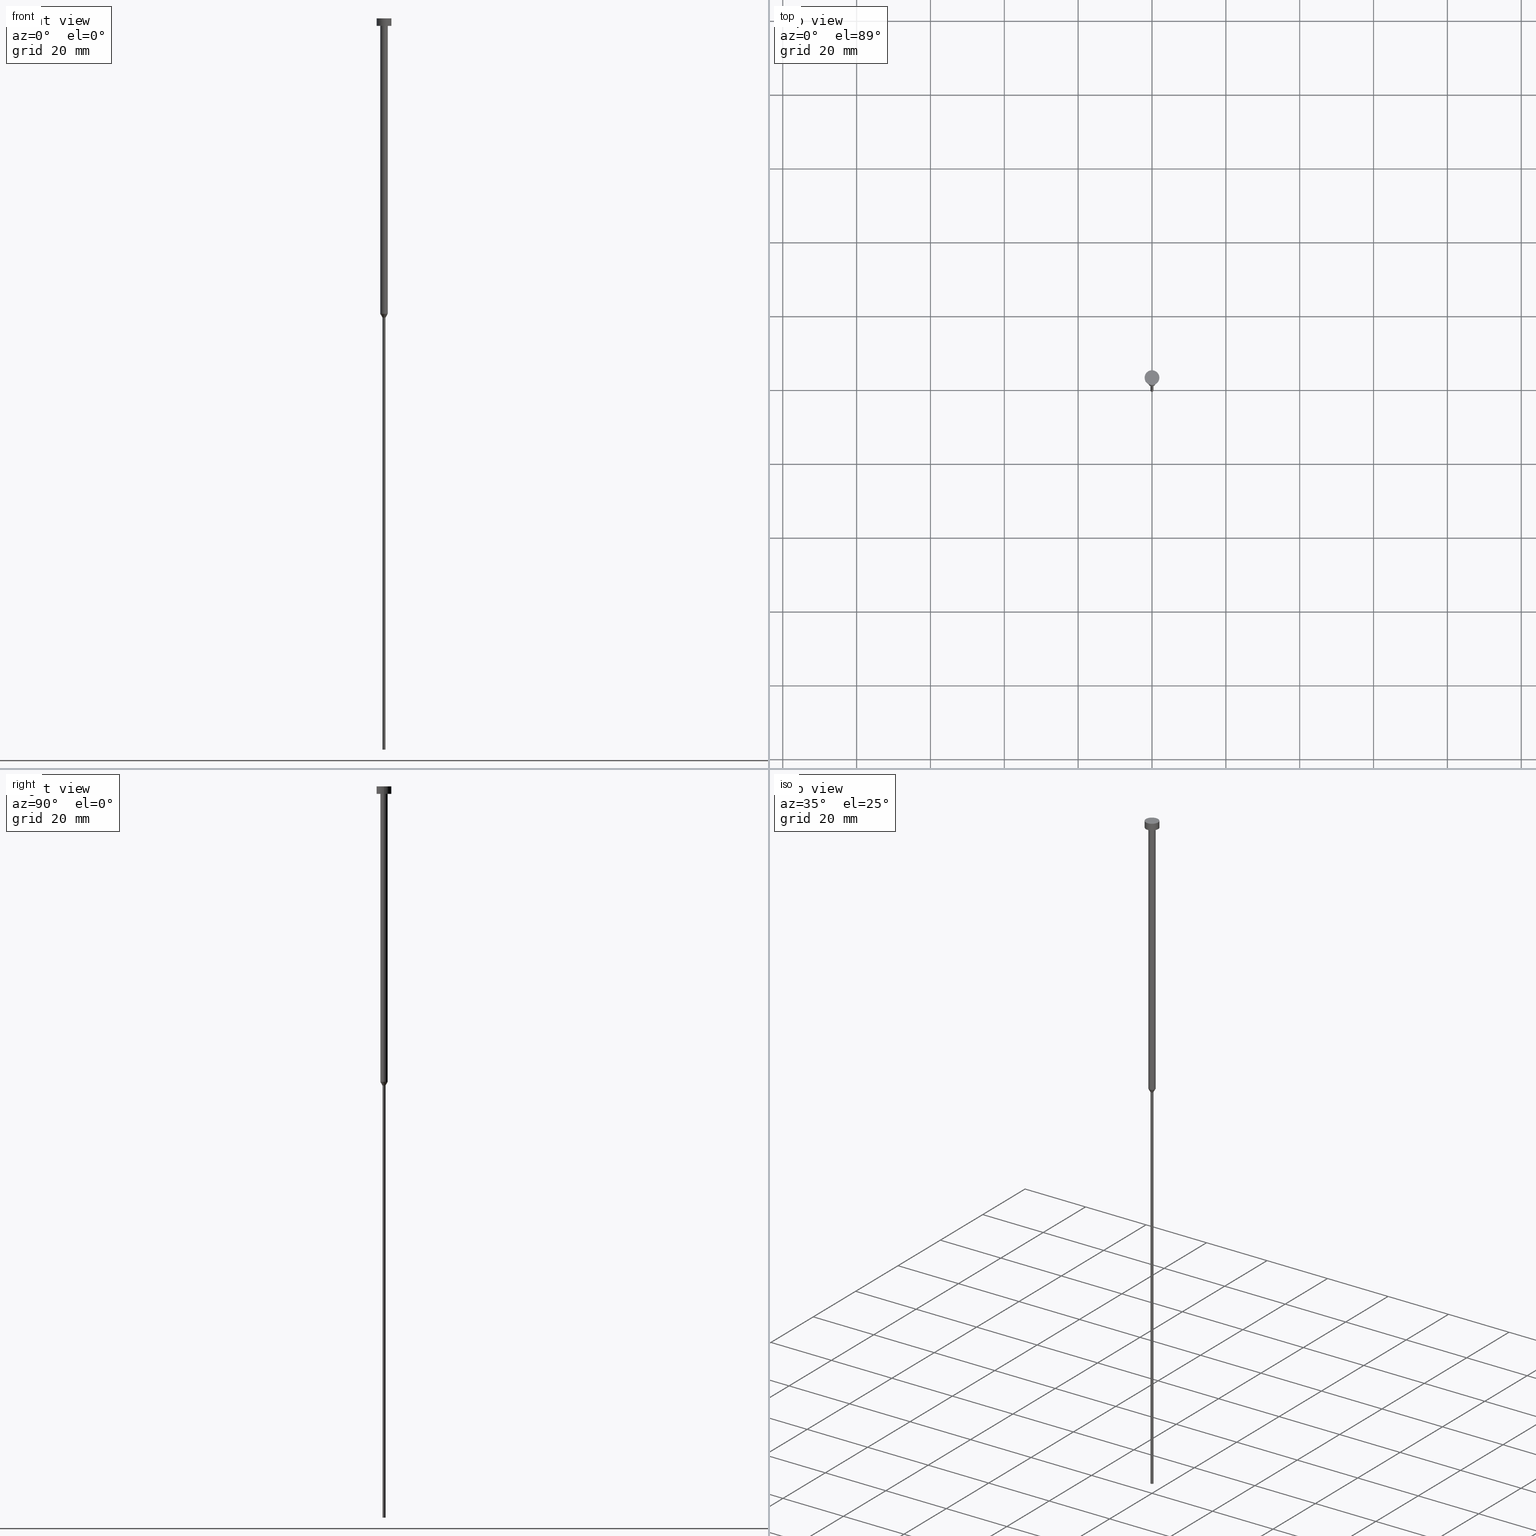
[diagram: canonical four-view strip — front | top / right | iso, engineering-drawing reading convention]
A machine part, canonical four-view strip (front | top / right | iso — engineering-drawing reading convention). The complete STEP part file that produces these views, byte-faithful:
ISO-10303-21;
HEADER;
FILE_DESCRIPTION (( 'STEP AP203' ),
    '1' );
FILE_NAME ('df1c.STEP',
    '2023-04-06T10:08:17',
    ( '' ),
    ( '' ),
    'SwSTEP 2.0',
    'SolidWorks 2019',
    '' );
FILE_SCHEMA (( 'CONFIG_CONTROL_DESIGN' ));
ENDSEC;

DATA;
#1 = EDGE_LOOP ( 'NONE', ( #109, #166, #287, #326 ) ) ;
#2 = VECTOR ( 'NONE', #301, 1000.000000000000000 ) ;
#3 = CC_DESIGN_PERSON_AND_ORGANIZATION_ASSIGNMENT ( #261, #311, ( #119 ) ) ;
#4 = EDGE_LOOP ( 'NONE', ( #296, #237, #211, #168 ) ) ;
#5 = CARTESIAN_POINT ( 'NONE',  ( 0.000000000000000000, 0.000000000000000000, -2.000000000000000444 ) ) ;
#6 = DIRECTION ( 'NONE',  ( -0.000000000000000000, -0.000000000000000000, 1.000000000000000000 ) ) ;
#7 = VECTOR ( 'NONE', #247, 1000.000000000000227 ) ;
#8 = DIRECTION ( 'NONE',  ( 1.000000000000000000, 0.000000000000000000, 0.000000000000000000 ) ) ;
#9 = DIRECTION ( 'NONE',  ( 1.000000000000000000, 0.000000000000000000, 0.000000000000000000 ) ) ;
#10 = COORDINATED_UNIVERSAL_TIME_OFFSET ( 1, 0, .AHEAD. ) ;
#11 = CARTESIAN_POINT ( 'NONE',  ( 2.000000000000000000, 0.000000000000000000, -2.449293598294705921E-16 ) ) ;
#12 = CONICAL_SURFACE ( 'NONE', #178, 1.000000000000003109, 0.5235987755983013692 ) ;
#13 = FACE_OUTER_BOUND ( 'NONE', #243, .T. ) ;
#14 = DATE_AND_TIME ( #207, #130 ) ;
#15 = ORIENTED_EDGE ( 'NONE', *, *, #78, .F. ) ;
#16 = ADVANCED_FACE ( 'NONE', ( #187 ), #351, .T. ) ;
#17 = APPLICATION_PROTOCOL_DEFINITION ( 'international standard', 'config_control_design', 1994, #70 ) ;
#18 = CIRCLE ( 'NONE', #28, 2.000000000000000000 ) ;
#19 = ORIENTED_EDGE ( 'NONE', *, *, #36, .F. ) ;
#20 = EDGE_LOOP ( 'NONE', ( #355, #263 ) ) ;
#21 = ADVANCED_FACE ( 'NONE', ( #189 ), #105, .T. ) ;
#22 = VERTEX_POINT ( 'NONE', #191 ) ;
#23 = CIRCLE ( 'NONE', #219, 2.000000000000000000 ) ;
#24 = EDGE_LOOP ( 'NONE', ( #55, #221, #328, #41 ) ) ;
#25 = VERTEX_POINT ( 'NONE', #332 ) ;
#26 = CC_DESIGN_APPROVAL ( #331, ( #244 ) ) ;
#27 = CARTESIAN_POINT ( 'NONE',  ( 0.000000000000000000, 0.000000000000000000, 0.000000000000000000 ) ) ;
#28 = AXIS2_PLACEMENT_3D ( 'NONE', #143, #251, #8 ) ;
#29 = VECTOR ( 'NONE', #276, 1000.000000000000000 ) ;
#30 = CARTESIAN_POINT ( 'NONE',  ( 0.000000000000000000, 0.000000000000000000, -1.224646799147352961E-16 ) ) ;
#31 = CARTESIAN_POINT ( 'NONE',  ( 0.000000000000000000, 0.000000000000000000, 0.000000000000000000 ) ) ;
#32 = CARTESIAN_POINT ( 'NONE',  ( -1.000000000000003553, 1.224646799147357398E-16, -2.000000000000000444 ) ) ;
#33 = CIRCLE ( 'NONE', #293, 0.4000000000000000222 ) ;
#34 = CALENDAR_DATE ( 2023, 6, 4 ) ;
#35 = CARTESIAN_POINT ( 'NONE',  ( -2.000000000000000000, 2.449293598294706414E-16, 0.000000000000000000 ) ) ;
#36 = EDGE_CURVE ( 'NONE', #233, #245, #33, .T. ) ;
#37 = DATE_TIME_ROLE ( 'classification_date' ) ;
#38 = LINE ( 'NONE', #212, #334 ) ;
#39 = CARTESIAN_POINT ( 'NONE',  ( 0.000000000000000000, 0.000000000000000000, 0.000000000000000000 ) ) ;
#40 = ORIENTED_EDGE ( 'NONE', *, *, #188, .T. ) ;
#41 = ORIENTED_EDGE ( 'NONE', *, *, #52, .F. ) ;
#42 = PERSON_AND_ORGANIZATION ( #352, #300 ) ;
#43 = DIRECTION ( 'NONE',  ( -0.000000000000000000, -0.000000000000000000, 1.000000000000000000 ) ) ;
#44 = DIRECTION ( 'NONE',  ( -0.000000000000000000, -0.000000000000000000, 1.000000000000000000 ) ) ;
#45 = AXIS2_PLACEMENT_3D ( 'NONE', #27, #220, #77 ) ;
#46 = EDGE_LOOP ( 'NONE', ( #343, #193 ) ) ;
#47 = PERSON_AND_ORGANIZATION_ROLE ( 'design_owner' ) ;
#48 = ORIENTED_EDGE ( 'NONE', *, *, #215, .T. ) ;
#49 = ORIENTED_EDGE ( 'NONE', *, *, #260, .T. ) ;
#50 = CARTESIAN_POINT ( 'NONE',  ( 1.000000000000003109, 0.000000000000000000, -80.00000000000000000 ) ) ;
#51 =( GEOMETRIC_REPRESENTATION_CONTEXT ( 3 ) GLOBAL_UNCERTAINTY_ASSIGNED_CONTEXT ( ( #141 ) ) GLOBAL_UNIT_ASSIGNED_CONTEXT ( ( #121, #318, #95 ) ) REPRESENTATION_CONTEXT ( 'NONE', 'WORKASPACE' ) );
#52 = EDGE_CURVE ( 'NONE', #22, #129, #270, .T. ) ;
#53 = VERTEX_POINT ( 'NONE', #269 ) ;
#54 = EDGE_LOOP ( 'NONE', ( #217, #19 ) ) ;
#55 = ORIENTED_EDGE ( 'NONE', *, *, #106, .T. ) ;
#56 = AXIS2_PLACEMENT_3D ( 'NONE', #132, #242, #79 ) ;
#57 = LINE ( 'NONE', #146, #206 ) ;
#58 = DIRECTION ( 'NONE',  ( 1.000000000000000000, 0.000000000000000000, 0.000000000000000000 ) ) ;
#59 = DIRECTION ( 'NONE',  ( -0.000000000000000000, -0.000000000000000000, 1.000000000000000000 ) ) ;
#60 = CIRCLE ( 'NONE', #268, 0.4000000000000000222 ) ;
#61 = APPROVAL_ROLE ( '' ) ;
#62 = LINE ( 'NONE', #35, #29 ) ;
#63 = CC_DESIGN_PERSON_AND_ORGANIZATION_ASSIGNMENT ( #239, #209, ( #244 ) ) ;
#64 = ADVANCED_BREP_SHAPE_REPRESENTATION ( 'df1c', ( #271, #98 ), #51 ) ;
#65 = COORDINATED_UNIVERSAL_TIME_OFFSET ( 1, 0, .AHEAD. ) ;
#66 = DIRECTION ( 'NONE',  ( -0.000000000000000000, -0.000000000000000000, 1.000000000000000000 ) ) ;
#67 = APPROVAL_PERSON_ORGANIZATION ( #42, #122, #349 ) ;
#68 = DATE_TIME_ROLE ( 'creation_date' ) ;
#69 = AXIS2_PLACEMENT_3D ( 'NONE', #313, #66, #258 ) ;
#70 = APPLICATION_CONTEXT ( 'configuration controlled 3d designs of mechanical parts and assemblies' ) ;
#71 = DIRECTION ( 'NONE',  ( -0.000000000000000000, -0.000000000000000000, 1.000000000000000000 ) ) ;
#72 = EDGE_LOOP ( 'NONE', ( #107, #302, #108, #15 ) ) ;
#73 = DIRECTION ( 'NONE',  ( 1.000000000000000000, 0.000000000000000000, 0.000000000000000000 ) ) ;
#74 = APPLICATION_PROTOCOL_DEFINITION ( 'international standard', 'config_control_design', 1994, #307 ) ;
#75 = EDGE_CURVE ( 'NONE', #245, #22, #133, .T. ) ;
#76 = PRODUCT_DEFINITION_SHAPE ( 'NONE', 'NONE',  #244 ) ;
#77 = DIRECTION ( 'NONE',  ( 1.000000000000000000, 0.000000000000000000, 0.000000000000000000 ) ) ;
#78 = EDGE_CURVE ( 'NONE', #192, #82, #286, .T. ) ;
#79 = DIRECTION ( 'NONE',  ( 1.000000000000000000, 0.000000000000000000, 0.000000000000000000 ) ) ;
#80 = CIRCLE ( 'NONE', #316, 2.000000000000000000 ) ;
#81 = EDGE_LOOP ( 'NONE', ( #49, #40, #205, #214 ) ) ;
#82 = VERTEX_POINT ( 'NONE', #252 ) ;
#83 = PLANE ( 'NONE',  #145 ) ;
#84 = ADVANCED_FACE ( 'NONE', ( #304, #279 ), #83, .T. ) ;
#85 = AXIS2_PLACEMENT_3D ( 'NONE', #87, #198, #89 ) ;
#86 = CARTESIAN_POINT ( 'NONE',  ( -0.3999999999999999667, 4.898587196589412459E-17, 0.000000000000000000 ) ) ;
#87 = CARTESIAN_POINT ( 'NONE',  ( 0.000000000000000000, 0.000000000000000000, -2.449293598294705921E-16 ) ) ;
#88 = EDGE_CURVE ( 'NONE', #82, #192, #195, .T. ) ;
#89 = DIRECTION ( 'NONE',  ( 1.000000000000000000, 0.000000000000000000, 0.000000000000000000 ) ) ;
#90 = CC_DESIGN_SECURITY_CLASSIFICATION ( #184, ( #119 ) ) ;
#91 = PERSON_AND_ORGANIZATION ( #352, #300 ) ;
#92 = CARTESIAN_POINT ( 'NONE',  ( 0.000000000000000000, -2.000000000000000000, -2.000000000000000444 ) ) ;
#93 = DATE_AND_TIME ( #173, #135 ) ;
#94 = DIRECTION ( 'NONE',  ( -0.000000000000000000, -0.000000000000000000, 1.000000000000000000 ) ) ;
#95 =( NAMED_UNIT ( * ) SI_UNIT ( $, .STERADIAN. ) SOLID_ANGLE_UNIT ( ) );
#96 = ORIENTED_EDGE ( 'NONE', *, *, #327, .T. ) ;
#97 = APPROVAL_STATUS ( 'not_yet_approved' ) ;
#98 = AXIS2_PLACEMENT_3D ( 'NONE', #124, #236, #345 ) ;
#99 = COORDINATED_UNIVERSAL_TIME_OFFSET ( 1, 0, .AHEAD. ) ;
#100 = CARTESIAN_POINT ( 'NONE',  ( 1.000000000000003331, 0.000000000000000000, 0.000000000000000000 ) ) ;
#101 = ADVANCED_FACE ( 'NONE', ( #335 ), #312, .T. ) ;
#102 = DIRECTION ( 'NONE',  ( -0.000000000000000000, -0.000000000000000000, 1.000000000000000000 ) ) ;
#103 = ORIENTED_EDGE ( 'NONE', *, *, #188, .F. ) ;
#104 = AXIS2_PLACEMENT_3D ( 'NONE', #5, #250, #254 ) ;
#105 = CYLINDRICAL_SURFACE ( 'NONE', #56, 1.000000000000003331 ) ;
#106 = EDGE_CURVE ( 'NONE', #22, #347, #213, .T. ) ;
#107 = ORIENTED_EDGE ( 'NONE', *, *, #157, .F. ) ;
#108 = ORIENTED_EDGE ( 'NONE', *, *, #297, .T. ) ;
#109 = ORIENTED_EDGE ( 'NONE', *, *, #306, .T. ) ;
#110 = EDGE_CURVE ( 'NONE', #347, #53, #273, .T. ) ;
#111 = CARTESIAN_POINT ( 'NONE',  ( 1.000000000000003109, 0.000000000000000000, -80.00000000000000000 ) ) ;
#112 = CARTESIAN_POINT ( 'NONE',  ( 0.000000000000000000, 0.000000000000000000, -80.00000000000000000 ) ) ;
#113 = CYLINDRICAL_SURFACE ( 'NONE', #131, 0.3999999999999999667 ) ;
#114 = ADVANCED_FACE ( 'NONE', ( #282 ), #174, .T. ) ;
#115 = CARTESIAN_POINT ( 'NONE',  ( 0.000000000000000000, 0.000000000000000000, 0.000000000000000000 ) ) ;
#116 = APPROVAL_DATE_TIME ( #253, #122 ) ;
#117 = DIRECTION ( 'NONE',  ( -0.000000000000000000, -0.000000000000000000, 1.000000000000000000 ) ) ;
#118 = CIRCLE ( 'NONE', #85, 2.000000000000000000 ) ;
#119 = PRODUCT_DEFINITION_FORMATION_WITH_SPECIFIED_SOURCE ( 'LIBOVOLN�', '', #259, .NOT_KNOWN. ) ;
#120 = DIRECTION ( 'NONE',  ( 1.000000000000000000, 0.000000000000000000, 0.000000000000000000 ) ) ;
#121 =( LENGTH_UNIT ( ) NAMED_UNIT ( * ) SI_UNIT ( .MILLI., .METRE. ) );
#122 = APPROVAL ( #97, 'NEUR�EN�' ) ;
#123 = DATE_AND_TIME ( #281, #142 ) ;
#124 = CARTESIAN_POINT ( 'NONE',  ( 0.000000000000000000, 0.000000000000000000, 0.000000000000000000 ) ) ;
#125 = APPROVAL_DATE_TIME ( #14, #331 ) ;
#126 = CIRCLE ( 'NONE', #223, 1.000000000000003109 ) ;
#127 = MECHANICAL_CONTEXT ( 'NONE', #70, 'mechanical' ) ;
#128 = EDGE_LOOP ( 'NONE', ( #48, #267 ) ) ;
#129 = VERTEX_POINT ( 'NONE', #111 ) ;
#130 = LOCAL_TIME ( 12, 8, 17.00000000000000000, #10 ) ;
#131 = AXIS2_PLACEMENT_3D ( 'NONE', #115, #226, #336 ) ;
#132 = CARTESIAN_POINT ( 'NONE',  ( 0.000000000000000000, 0.000000000000000000, 0.000000000000000000 ) ) ;
#133 = LINE ( 'NONE', #272, #2 ) ;
#134 = CARTESIAN_POINT ( 'NONE',  ( 0.000000000000000000, 0.000000000000000000, -2.000000000000000444 ) ) ;
#135 = LOCAL_TIME ( 12, 8, 17.00000000000000000, #99 ) ;
#136 = DIRECTION ( 'NONE',  ( -0.000000000000000000, -0.000000000000000000, 1.000000000000000000 ) ) ;
#137 = AXIS2_PLACEMENT_3D ( 'NONE', #31, #340, #9 ) ;
#138 = EDGE_CURVE ( 'NONE', #347, #22, #324, .T. ) ;
#139 = CARTESIAN_POINT ( 'NONE',  ( -1.000000000000003109, 1.224646799147356905E-16, -80.00000000000000000 ) ) ;
#140 = DIRECTION ( 'NONE',  ( -0.5000000000000021094, 6.123233995736791920E-17, 0.8660254037844373753 ) ) ;
#141 = UNCERTAINTY_MEASURE_WITH_UNIT (LENGTH_MEASURE( 1.000000000000000082E-05 ), #121, 'distance_accuracy_value', 'NONE');
#142 = LOCAL_TIME ( 12, 8, 17.00000000000000000, #257 ) ;
#143 = CARTESIAN_POINT ( 'NONE',  ( 0.000000000000000000, 0.000000000000000000, -2.449293598294705921E-16 ) ) ;
#144 = CC_DESIGN_PERSON_AND_ORGANIZATION_ASSIGNMENT ( #235, #154, ( #119 ) ) ;
#145 = AXIS2_PLACEMENT_3D ( 'NONE', #92, #200, #305 ) ;
#146 = CARTESIAN_POINT ( 'NONE',  ( -1.000000000000003331, 1.224646799147357151E-16, 0.000000000000000000 ) ) ;
#147 = DATE_AND_TIME ( #34, #230 ) ;
#148 = DIRECTION ( 'NONE',  ( -0.000000000000000000, -0.000000000000000000, 1.000000000000000000 ) ) ;
#149 = LINE ( 'NONE', #100, #238 ) ;
#150 = AXIS2_PLACEMENT_3D ( 'NONE', #134, #136, #303 ) ;
#151 = CC_DESIGN_PERSON_AND_ORGANIZATION_ASSIGNMENT ( #203, #290, ( #184 ) ) ;
#152 = CARTESIAN_POINT ( 'NONE',  ( 0.000000000000000000, 0.000000000000000000, -198.0000000000000000 ) ) ;
#153 = DIRECTION ( 'NONE',  ( 1.000000000000000000, 0.000000000000000000, 0.000000000000000000 ) ) ;
#154 = PERSON_AND_ORGANIZATION_ROLE ( 'design_supplier' ) ;
#155 = DIRECTION ( 'NONE',  ( -1.000000000000000000, 0.000000000000000000, -0.000000000000000000 ) ) ;
#156 = VERTEX_POINT ( 'NONE', #11 ) ;
#157 = EDGE_CURVE ( 'NONE', #53, #192, #57, .T. ) ;
#158 = FACE_OUTER_BOUND ( 'NONE', #54, .T. ) ;
#159 = ORIENTED_EDGE ( 'NONE', *, *, #163, .T. ) ;
#160 = APPROVAL_STATUS ( 'not_yet_approved' ) ;
#161 = EDGE_LOOP ( 'NONE', ( #216, #323, #295, #165 ) ) ;
#162 = ORIENTED_EDGE ( 'NONE', *, *, #75, .F. ) ;
#163 = EDGE_CURVE ( 'NONE', #233, #347, #333, .T. ) ;
#164 = ORIENTED_EDGE ( 'NONE', *, *, #249, .T. ) ;
#165 = ORIENTED_EDGE ( 'NONE', *, *, #138, .F. ) ;
#166 = ORIENTED_EDGE ( 'NONE', *, *, #157, .T. ) ;
#167 = ADVANCED_FACE ( 'NONE', ( #337 ), #196, .T. ) ;
#168 = ORIENTED_EDGE ( 'NONE', *, *, #289, .F. ) ;
#169 = CARTESIAN_POINT ( 'NONE',  ( 0.000000000000000000, 0.000000000000000000, 0.000000000000000000 ) ) ;
#170 = DIRECTION ( 'NONE',  ( 1.000000000000000000, 0.000000000000000000, 0.000000000000000000 ) ) ;
#171 = FACE_OUTER_BOUND ( 'NONE', #24, .T. ) ;
#172 = AXIS2_PLACEMENT_3D ( 'NONE', #152, #265, #155 ) ;
#173 = CALENDAR_DATE ( 2023, 6, 4 ) ;
#174 = PLANE ( 'NONE',  #231 ) ;
#175 = CARTESIAN_POINT ( 'NONE',  ( 0.000000000000000000, 0.000000000000000000, -80.00000000000000000 ) ) ;
#176 = APPROVAL_DATE_TIME ( #93, #229 ) ;
#177 = DIRECTION ( 'NONE',  ( 1.000000000000000000, 0.000000000000000000, 0.000000000000000000 ) ) ;
#178 = AXIS2_PLACEMENT_3D ( 'NONE', #175, #283, #120 ) ;
#179 = APPROVAL_STATUS ( 'not_yet_approved' ) ;
#180 = CARTESIAN_POINT ( 'NONE',  ( -0.3999999999999999667, 4.898587196589412459E-17, -81.03923048454132072 ) ) ;
#181 = ADVANCED_FACE ( 'NONE', ( #171 ), #278, .T. ) ;
#182 = ORIENTED_EDGE ( 'NONE', *, *, #348, .T. ) ;
#183 = CARTESIAN_POINT ( 'NONE',  ( -0.4000000000000000777, 4.898587196589413692E-17, -198.0000000000000000 ) ) ;
#184 = SECURITY_CLASSIFICATION ( '', '', #344 ) ;
#185 = AXIS2_PLACEMENT_3D ( 'NONE', #169, #148, #275 ) ;
#186 = PERSON_AND_ORGANIZATION ( #352, #300 ) ;
#187 = FACE_OUTER_BOUND ( 'NONE', #81, .T. ) ;
#188 = EDGE_CURVE ( 'NONE', #25, #319, #62, .T. ) ;
#189 = FACE_OUTER_BOUND ( 'NONE', #1, .T. ) ;
#190 = VECTOR ( 'NONE', #59, 1000.000000000000000 ) ;
#191 = CARTESIAN_POINT ( 'NONE',  ( 0.3999999999999999667, 0.000000000000000000, -81.03923048454132072 ) ) ;
#192 = VERTEX_POINT ( 'NONE', #32 ) ;
#193 = ORIENTED_EDGE ( 'NONE', *, *, #78, .T. ) ;
#194 = LOCAL_TIME ( 12, 8, 17.00000000000000000, #228 ) ;
#195 = CIRCLE ( 'NONE', #104, 1.000000000000003553 ) ;
#196 = CYLINDRICAL_SURFACE ( 'NONE', #185, 1.000000000000003331 ) ;
#197 = DIRECTION ( 'NONE',  ( -0.000000000000000000, -0.000000000000000000, 1.000000000000000000 ) ) ;
#198 = DIRECTION ( 'NONE',  ( -0.000000000000000000, -0.000000000000000000, 1.000000000000000000 ) ) ;
#199 = CC_DESIGN_APPROVAL ( #122, ( #184 ) ) ;
#200 = DIRECTION ( 'NONE',  ( 0.000000000000000000, 0.000000000000000000, -1.000000000000000000 ) ) ;
#201 = CARTESIAN_POINT ( 'NONE',  ( 0.000000000000000000, 0.000000000000000000, -81.03923048454132072 ) ) ;
#202 = DESIGN_CONTEXT ( 'detailed design', #307, 'design' ) ;
#203 = PERSON_AND_ORGANIZATION ( #352, #300 ) ;
#204 = CARTESIAN_POINT ( 'NONE',  ( 0.000000000000000000, 0.000000000000000000, -80.00000000000000000 ) ) ;
#205 = ORIENTED_EDGE ( 'NONE', *, *, #215, .F. ) ;
#206 = VECTOR ( 'NONE', #117, 1000.000000000000000 ) ;
#207 = CALENDAR_DATE ( 2023, 6, 4 ) ;
#208 = CARTESIAN_POINT ( 'NONE',  ( 0.000000000000000000, 0.000000000000000000, -198.0000000000000000 ) ) ;
#209 = PERSON_AND_ORGANIZATION_ROLE ( 'creator' ) ;
#210 = CARTESIAN_POINT ( 'NONE',  ( -2.000000000000000000, 2.449293598294706414E-16, -2.449293598294705921E-16 ) ) ;
#211 = ORIENTED_EDGE ( 'NONE', *, *, #52, .T. ) ;
#212 = CARTESIAN_POINT ( 'NONE',  ( 2.000000000000000000, 0.000000000000000000, 0.000000000000000000 ) ) ;
#213 = CIRCLE ( 'NONE', #346, 0.3999999999999999667 ) ;
#214 = ORIENTED_EDGE ( 'NONE', *, *, #249, .F. ) ;
#215 = EDGE_CURVE ( 'NONE', #156, #319, #18, .T. ) ;
#216 = ORIENTED_EDGE ( 'NONE', *, *, #163, .F. ) ;
#217 = ORIENTED_EDGE ( 'NONE', *, *, #327, .F. ) ;
#218 = ADVANCED_FACE ( 'NONE', ( #227 ), #113, .T. ) ;
#219 = AXIS2_PLACEMENT_3D ( 'NONE', #322, #102, #315 ) ;
#220 = DIRECTION ( 'NONE',  ( -0.000000000000000000, -0.000000000000000000, 1.000000000000000000 ) ) ;
#221 = ORIENTED_EDGE ( 'NONE', *, *, #110, .T. ) ;
#222 = DIRECTION ( 'NONE',  ( 1.000000000000000000, 0.000000000000000000, 0.000000000000000000 ) ) ;
#223 = AXIS2_PLACEMENT_3D ( 'NONE', #204, #94, #153 ) ;
#224 = DIRECTION ( 'NONE',  ( 0.000000000000000000, -0.000000000000000000, 1.000000000000000000 ) ) ;
#225 = EDGE_CURVE ( 'NONE', #319, #156, #118, .T. ) ;
#226 = DIRECTION ( 'NONE',  ( -0.000000000000000000, -0.000000000000000000, 1.000000000000000000 ) ) ;
#227 = FACE_OUTER_BOUND ( 'NONE', #161, .T. ) ;
#228 = COORDINATED_UNIVERSAL_TIME_OFFSET ( 1, 0, .AHEAD. ) ;
#229 = APPROVAL ( #179, 'NEUR�EN�' ) ;
#230 = LOCAL_TIME ( 12, 8, 17.00000000000000000, #65 ) ;
#231 = AXIS2_PLACEMENT_3D ( 'NONE', #30, #224, #248 ) ;
#232 = DIRECTION ( 'NONE',  ( 1.000000000000000000, 0.000000000000000000, 0.000000000000000000 ) ) ;
#233 = VERTEX_POINT ( 'NONE', #183 ) ;
#234 = ADVANCED_FACE ( 'NONE', ( #240 ), #12, .T. ) ;
#235 = PERSON_AND_ORGANIZATION ( #352, #300 ) ;
#236 = DIRECTION ( 'NONE',  ( 0.000000000000000000, 0.000000000000000000, 1.000000000000000000 ) ) ;
#237 = ORIENTED_EDGE ( 'NONE', *, *, #138, .T. ) ;
#238 = VECTOR ( 'NONE', #43, 1000.000000000000000 ) ;
#239 = PERSON_AND_ORGANIZATION ( #352, #300 ) ;
#240 = FACE_OUTER_BOUND ( 'NONE', #4, .T. ) ;
#241 = ORIENTED_EDGE ( 'NONE', *, *, #106, .F. ) ;
#242 = DIRECTION ( 'NONE',  ( -0.000000000000000000, -0.000000000000000000, 1.000000000000000000 ) ) ;
#243 = EDGE_LOOP ( 'NONE', ( #96, #159, #241, #162 ) ) ;
#244 = PRODUCT_DEFINITION ( 'NEZN�M�', '', #119, #202 ) ;
#245 = VERTEX_POINT ( 'NONE', #321 ) ;
#246 = VECTOR ( 'NONE', #140, 1000.000000000000227 ) ;
#247 = DIRECTION ( 'NONE',  ( 0.5000000000000021094, 0.000000000000000000, 0.8660254037844373753 ) ) ;
#248 = DIRECTION ( 'NONE',  ( 1.000000000000000000, 0.000000000000000000, 0.000000000000000000 ) ) ;
#249 = EDGE_CURVE ( 'NONE', #291, #156, #38, .T. ) ;
#250 = DIRECTION ( 'NONE',  ( -0.000000000000000000, -0.000000000000000000, 1.000000000000000000 ) ) ;
#251 = DIRECTION ( 'NONE',  ( -0.000000000000000000, -0.000000000000000000, 1.000000000000000000 ) ) ;
#252 = CARTESIAN_POINT ( 'NONE',  ( 1.000000000000003553, 0.000000000000000000, -2.000000000000000444 ) ) ;
#253 = DATE_AND_TIME ( #288, #194 ) ;
#254 = DIRECTION ( 'NONE',  ( 1.000000000000000000, 0.000000000000000000, 0.000000000000000000 ) ) ;
#255 = DIRECTION ( 'NONE',  ( -0.000000000000000000, -0.000000000000000000, 1.000000000000000000 ) ) ;
#256 = CLOSED_SHELL ( 'NONE', ( #16, #21, #181, #342, #354, #218, #234, #167, #84, #101, #114 ) ) ;
#257 = COORDINATED_UNIVERSAL_TIME_OFFSET ( 1, 0, .AHEAD. ) ;
#258 = DIRECTION ( 'NONE',  ( 1.000000000000000000, 0.000000000000000000, 0.000000000000000000 ) ) ;
#259 = PRODUCT ( 'df1c', 'df1c', '', ( #127 ) ) ;
#260 = EDGE_CURVE ( 'NONE', #291, #25, #23, .T. ) ;
#261 = PERSON_AND_ORGANIZATION ( #352, #300 ) ;
#262 = CYLINDRICAL_SURFACE ( 'NONE', #264, 0.3999999999999999667 ) ;
#263 = ORIENTED_EDGE ( 'NONE', *, *, #348, .F. ) ;
#264 = AXIS2_PLACEMENT_3D ( 'NONE', #39, #292, #232 ) ;
#265 = DIRECTION ( 'NONE',  ( 0.000000000000000000, 0.000000000000000000, -1.000000000000000000 ) ) ;
#266 = PERSON_AND_ORGANIZATION ( #352, #300 ) ;
#267 = ORIENTED_EDGE ( 'NONE', *, *, #225, .T. ) ;
#268 = AXIS2_PLACEMENT_3D ( 'NONE', #208, #255, #177 ) ;
#269 = CARTESIAN_POINT ( 'NONE',  ( -1.000000000000003109, 1.224646799147356905E-16, -80.00000000000000000 ) ) ;
#270 = LINE ( 'NONE', #50, #7 ) ;
#271 = MANIFOLD_SOLID_BREP ( 'Rotovat1', #256 ) ;
#272 = CARTESIAN_POINT ( 'NONE',  ( 0.3999999999999999667, 0.000000000000000000, 0.000000000000000000 ) ) ;
#273 = LINE ( 'NONE', #139, #246 ) ;
#274 = PRODUCT_RELATED_PRODUCT_CATEGORY ( 'detail', '', ( #259 ) ) ;
#275 = DIRECTION ( 'NONE',  ( 1.000000000000000000, 0.000000000000000000, 0.000000000000000000 ) ) ;
#276 = DIRECTION ( 'NONE',  ( -0.000000000000000000, -0.000000000000000000, 1.000000000000000000 ) ) ;
#277 = APPROVAL_PERSON_ORGANIZATION ( #186, #331, #294 ) ;
#278 = CONICAL_SURFACE ( 'NONE', #309, 1.000000000000003109, 0.5235987755983013692 ) ;
#279 = FACE_OUTER_BOUND ( 'NONE', #20, .T. ) ;
#280 = CC_DESIGN_PERSON_AND_ORGANIZATION_ASSIGNMENT ( #266, #47, ( #259 ) ) ;
#281 = CALENDAR_DATE ( 2023, 6, 4 ) ;
#282 = FACE_OUTER_BOUND ( 'NONE', #128, .T. ) ;
#283 = DIRECTION ( 'NONE',  ( -0.000000000000000000, -0.000000000000000000, 1.000000000000000000 ) ) ;
#284 = SHAPE_DEFINITION_REPRESENTATION ( #76, #64 ) ;
#285 = PLANE ( 'NONE',  #172 ) ;
#286 = CIRCLE ( 'NONE', #150, 1.000000000000003553 ) ;
#287 = ORIENTED_EDGE ( 'NONE', *, *, #88, .F. ) ;
#288 = CALENDAR_DATE ( 2023, 6, 4 ) ;
#289 = EDGE_CURVE ( 'NONE', #53, #129, #126, .T. ) ;
#290 = PERSON_AND_ORGANIZATION_ROLE ( 'classification_officer' ) ;
#291 = VERTEX_POINT ( 'NONE', #350 ) ;
#292 = DIRECTION ( 'NONE',  ( -0.000000000000000000, -0.000000000000000000, 1.000000000000000000 ) ) ;
#293 = AXIS2_PLACEMENT_3D ( 'NONE', #353, #330, #298 ) ;
#294 = APPROVAL_ROLE ( '' ) ;
#295 = ORIENTED_EDGE ( 'NONE', *, *, #75, .T. ) ;
#296 = ORIENTED_EDGE ( 'NONE', *, *, #110, .F. ) ;
#297 = EDGE_CURVE ( 'NONE', #129, #82, #149, .T. ) ;
#298 = DIRECTION ( 'NONE',  ( 1.000000000000000000, 0.000000000000000000, 0.000000000000000000 ) ) ;
#299 = CC_DESIGN_APPROVAL ( #229, ( #119 ) ) ;
#300 = ORGANIZATION ( 'NEUR�EN�', 'NEUR�EN�', '' ) ;
#301 = DIRECTION ( 'NONE',  ( -0.000000000000000000, -0.000000000000000000, 1.000000000000000000 ) ) ;
#302 = ORIENTED_EDGE ( 'NONE', *, *, #289, .T. ) ;
#303 = DIRECTION ( 'NONE',  ( 1.000000000000000000, 0.000000000000000000, 0.000000000000000000 ) ) ;
#304 = FACE_BOUND ( 'NONE', #46, .T. ) ;
#305 = DIRECTION ( 'NONE',  ( -1.000000000000000000, 0.000000000000000000, -0.000000000000000000 ) ) ;
#306 = EDGE_CURVE ( 'NONE', #129, #53, #329, .T. ) ;
#307 = APPLICATION_CONTEXT ( 'configuration controlled 3d designs of mechanical parts and assemblies' ) ;
#308 = CARTESIAN_POINT ( 'NONE',  ( 0.000000000000000000, 0.000000000000000000, -81.03923048454132072 ) ) ;
#309 = AXIS2_PLACEMENT_3D ( 'NONE', #112, #197, #170 ) ;
#310 = DIRECTION ( 'NONE',  ( -0.000000000000000000, -0.000000000000000000, 1.000000000000000000 ) ) ;
#311 = PERSON_AND_ORGANIZATION_ROLE ( 'creator' ) ;
#312 = CYLINDRICAL_SURFACE ( 'NONE', #137, 2.000000000000000000 ) ;
#313 = CARTESIAN_POINT ( 'NONE',  ( 0.000000000000000000, 0.000000000000000000, -80.00000000000000000 ) ) ;
#314 = CC_DESIGN_DATE_AND_TIME_ASSIGNMENT ( #123, #68, ( #244 ) ) ;
#315 = DIRECTION ( 'NONE',  ( 1.000000000000000000, 0.000000000000000000, 0.000000000000000000 ) ) ;
#316 = AXIS2_PLACEMENT_3D ( 'NONE', #341, #44, #73 ) ;
#317 = EDGE_LOOP ( 'NONE', ( #103, #182, #164, #325 ) ) ;
#318 =( NAMED_UNIT ( * ) PLANE_ANGLE_UNIT ( ) SI_UNIT ( $, .RADIAN. ) );
#319 = VERTEX_POINT ( 'NONE', #210 ) ;
#320 = CC_DESIGN_DATE_AND_TIME_ASSIGNMENT ( #147, #37, ( #184 ) ) ;
#321 = CARTESIAN_POINT ( 'NONE',  ( 0.4000000000000000222, 0.000000000000000000, -198.0000000000000000 ) ) ;
#322 = CARTESIAN_POINT ( 'NONE',  ( 0.000000000000000000, 0.000000000000000000, -2.000000000000000444 ) ) ;
#323 = ORIENTED_EDGE ( 'NONE', *, *, #36, .T. ) ;
#324 = CIRCLE ( 'NONE', #339, 0.3999999999999999667 ) ;
#325 = ORIENTED_EDGE ( 'NONE', *, *, #225, .F. ) ;
#326 = ORIENTED_EDGE ( 'NONE', *, *, #297, .F. ) ;
#327 = EDGE_CURVE ( 'NONE', #245, #233, #60, .T. ) ;
#328 = ORIENTED_EDGE ( 'NONE', *, *, #306, .F. ) ;
#329 = CIRCLE ( 'NONE', #69, 1.000000000000003109 ) ;
#330 = DIRECTION ( 'NONE',  ( -0.000000000000000000, -0.000000000000000000, 1.000000000000000000 ) ) ;
#331 = APPROVAL ( #160, 'NEUR�EN�' ) ;
#332 = CARTESIAN_POINT ( 'NONE',  ( -2.000000000000000000, 2.449293598294706414E-16, -2.000000000000000444 ) ) ;
#333 = LINE ( 'NONE', #86, #190 ) ;
#334 = VECTOR ( 'NONE', #71, 1000.000000000000000 ) ;
#335 = FACE_OUTER_BOUND ( 'NONE', #317, .T. ) ;
#336 = DIRECTION ( 'NONE',  ( 1.000000000000000000, 0.000000000000000000, 0.000000000000000000 ) ) ;
#337 = FACE_OUTER_BOUND ( 'NONE', #72, .T. ) ;
#338 = APPROVAL_PERSON_ORGANIZATION ( #91, #229, #61 ) ;
#339 = AXIS2_PLACEMENT_3D ( 'NONE', #308, #6, #222 ) ;
#340 = DIRECTION ( 'NONE',  ( -0.000000000000000000, -0.000000000000000000, 1.000000000000000000 ) ) ;
#341 = CARTESIAN_POINT ( 'NONE',  ( 0.000000000000000000, 0.000000000000000000, -2.000000000000000444 ) ) ;
#342 = ADVANCED_FACE ( 'NONE', ( #13 ), #262, .T. ) ;
#343 = ORIENTED_EDGE ( 'NONE', *, *, #88, .T. ) ;
#344 = SECURITY_CLASSIFICATION_LEVEL ( 'unclassified' ) ;
#345 = DIRECTION ( 'NONE',  ( 1.000000000000000000, 0.000000000000000000, 0.000000000000000000 ) ) ;
#346 = AXIS2_PLACEMENT_3D ( 'NONE', #201, #310, #58 ) ;
#347 = VERTEX_POINT ( 'NONE', #180 ) ;
#348 = EDGE_CURVE ( 'NONE', #25, #291, #80, .T. ) ;
#349 = APPROVAL_ROLE ( '' ) ;
#350 = CARTESIAN_POINT ( 'NONE',  ( 2.000000000000000000, 0.000000000000000000, -2.000000000000000444 ) ) ;
#351 = CYLINDRICAL_SURFACE ( 'NONE', #45, 2.000000000000000000 ) ;
#352 = PERSON ( 'NEUR�EN�', 'NEUR�EN�', 'NEUR�EN�', ('NEUR�EN�'), ('NEUR�EN�'), ('NEUR�EN�') ) ;
#353 = CARTESIAN_POINT ( 'NONE',  ( 0.000000000000000000, 0.000000000000000000, -198.0000000000000000 ) ) ;
#354 = ADVANCED_FACE ( 'NONE', ( #158 ), #285, .T. ) ;
#355 = ORIENTED_EDGE ( 'NONE', *, *, #260, .F. ) ;
ENDSEC;
END-ISO-10303-21;
